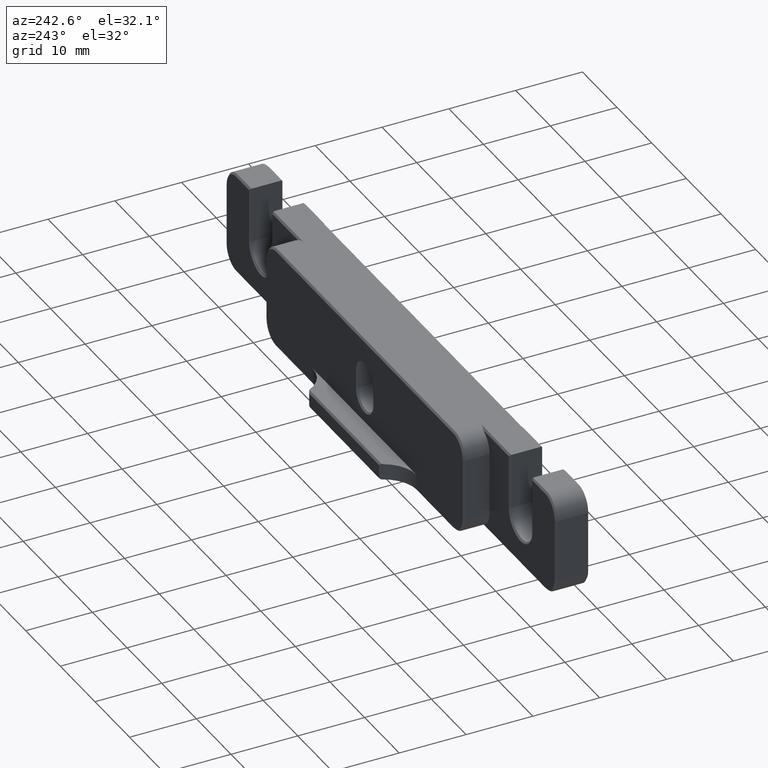
[diagram: clean part render]
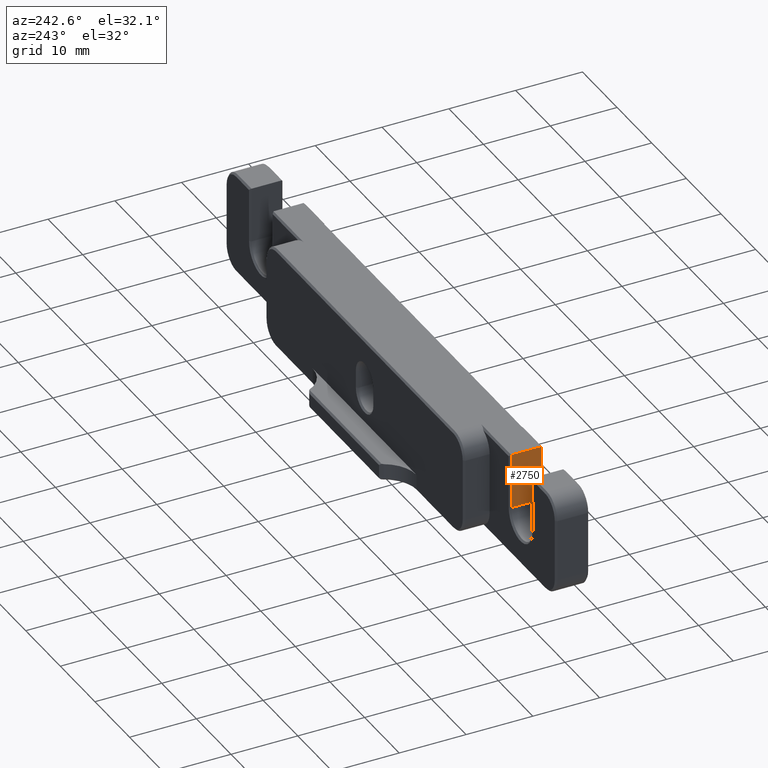
[diagram: same view with one face highlighted and labeled with its STEP entity id]
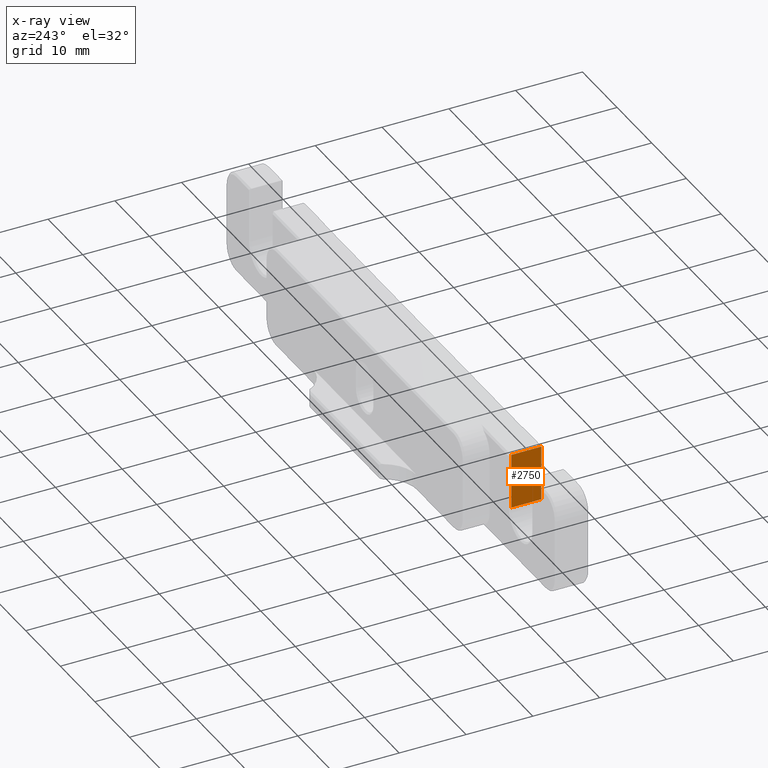
[diagram: x-ray of the same camera — body ghosted, the highlighted face saturated]
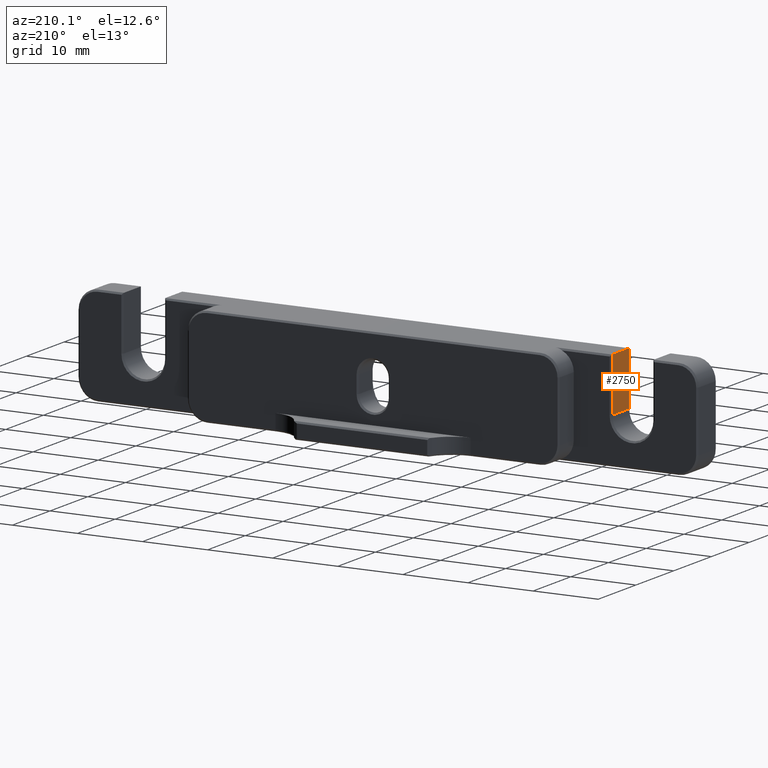
[diagram: same view with one face highlighted and labeled with its STEP entity id]
A machine part, auxiliary view. The second image highlights one B-rep face of the part: STEP entity #2750.
The next image is the same camera in x-ray: the body ghosted, the highlighted face saturated — about 2% of this face is hidden behind the body in this view.
A second angle (auxiliary view) of the same face is appended — the face is thin or edge-on in the first view.
In plain terms, the highlighted planar face has unit normal (1, 0, 0).
Its self-contained STEP definition (entity closure, byte-faithful):
#64 = EDGE_CURVE ( 'NONE', #3741, #2620, #3156, .T. ) ;
#107 = VECTOR ( 'NONE', #2907, 1000.000000000000000 ) ;
#330 = DIRECTION ( 'NONE',  ( 0.000000000000000000, -1.000000000000000000, 0.000000000000000000 ) ) ;
#410 = VECTOR ( 'NONE', #3991, 1000.000000000000000 ) ;
#540 = CARTESIAN_POINT ( 'NONE',  ( -34.32500000000000995, 4.750000000000000000, -0.6400000000000191092 ) ) ;
#662 = DIRECTION ( 'NONE',  ( 0.000000000000000000, 0.000000000000000000, -1.000000000000000000 ) ) ;
#899 = CARTESIAN_POINT ( 'NONE',  ( -34.32500000000000995, 0.2500000000000002220, 7.619999999999999218 ) ) ;
#1086 = CARTESIAN_POINT ( 'NONE',  ( -34.32500000000000995, 0.000000000000000000, 15.88000000000001499 ) ) ;
#1337 = ORIENTED_EDGE ( 'NONE', *, *, #4541, .F. ) ;
#1363 = LINE ( 'NONE', #1397, #410 ) ;
#1394 = EDGE_CURVE ( 'NONE', #4599, #2620, #4514, .T. ) ;
#1397 = CARTESIAN_POINT ( 'NONE',  ( -34.32500000000000995, 0.000000000000000000, -0.6400000000000191092 ) ) ;
#1747 = VERTEX_POINT ( 'NONE', #540 ) ;
#2055 = ORIENTED_EDGE ( 'NONE', *, *, #2616, .T. ) ;
#2487 = CARTESIAN_POINT ( 'NONE',  ( -34.32500000000000995, 0.2500000000000002220, 15.88000000000001499 ) ) ;
#2576 = VECTOR ( 'NONE', #662, 1000.000000000000000 ) ;
#2616 = EDGE_CURVE ( 'NONE', #3741, #1747, #4194, .T. ) ;
#2620 = VERTEX_POINT ( 'NONE', #899 ) ;
#2743 = ORIENTED_EDGE ( 'NONE', *, *, #64, .F. ) ;
#2750 = ADVANCED_FACE ( 'NONE', ( #4083 ), #2926, .F. ) ;
#2907 = DIRECTION ( 'NONE',  ( 0.000000000000000000, 0.000000000000000000, 1.000000000000000000 ) ) ;
#2926 = PLANE ( 'NONE',  #2990 ) ;
#2990 = AXIS2_PLACEMENT_3D ( 'NONE', #1086, #3781, #3055 ) ;
#3051 = ORIENTED_EDGE ( 'NONE', *, *, #1394, .T. ) ;
#3055 = DIRECTION ( 'NONE',  ( 0.000000000000000000, 0.000000000000000000, -1.000000000000000000 ) ) ;
#3156 = LINE ( 'NONE', #4105, #3703 ) ;
#3187 = CARTESIAN_POINT ( 'NONE',  ( -34.32500000000000995, 0.2500000000000002220, -0.6400000000000191092 ) ) ;
#3224 = CARTESIAN_POINT ( 'NONE',  ( -34.32500000000000995, 4.750000000000000000, -0.6400000000000191092 ) ) ;
#3703 = VECTOR ( 'NONE', #330, 1000.000000000000000 ) ;
#3741 = VERTEX_POINT ( 'NONE', #4390 ) ;
#3781 = DIRECTION ( 'NONE',  ( 1.000000000000000000, 0.000000000000000000, 0.000000000000000000 ) ) ;
#3991 = DIRECTION ( 'NONE',  ( -0.000000000000000000, 1.000000000000000000, -0.000000000000000000 ) ) ;
#4083 = FACE_OUTER_BOUND ( 'NONE', #4163, .T. ) ;
#4105 = CARTESIAN_POINT ( 'NONE',  ( -34.32500000000000995, 12.00000000000000000, 7.619999999999999218 ) ) ;
#4163 = EDGE_LOOP ( 'NONE', ( #1337, #3051, #2743, #2055 ) ) ;
#4194 = LINE ( 'NONE', #3224, #2576 ) ;
#4390 = CARTESIAN_POINT ( 'NONE',  ( -34.32500000000000995, 4.750000000000000000, 7.619999999999999218 ) ) ;
#4514 = LINE ( 'NONE', #2487, #107 ) ;
#4541 = EDGE_CURVE ( 'NONE', #4599, #1747, #1363, .T. ) ;
#4599 = VERTEX_POINT ( 'NONE', #3187 ) ;